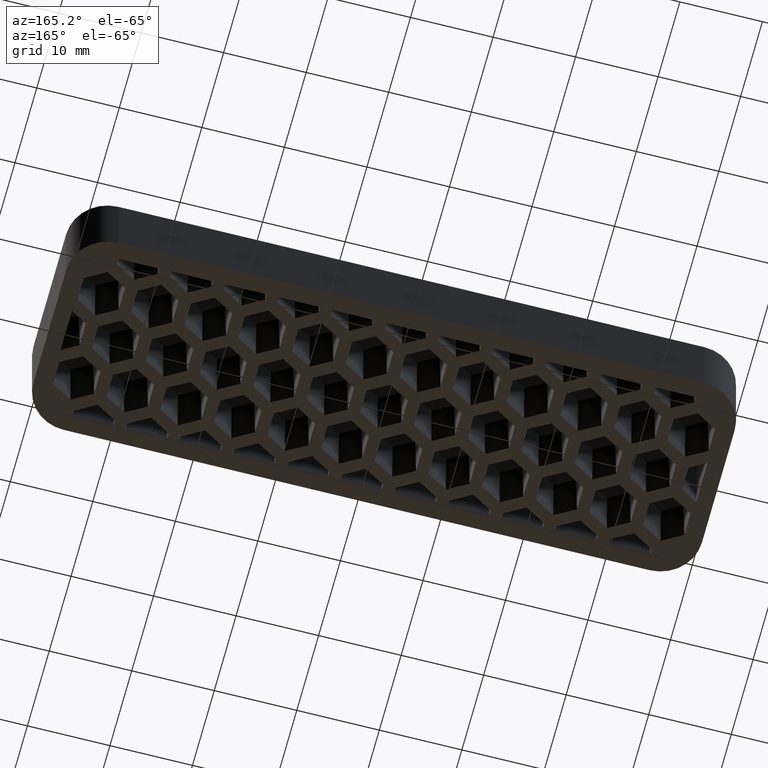
[diagram: clean part render]
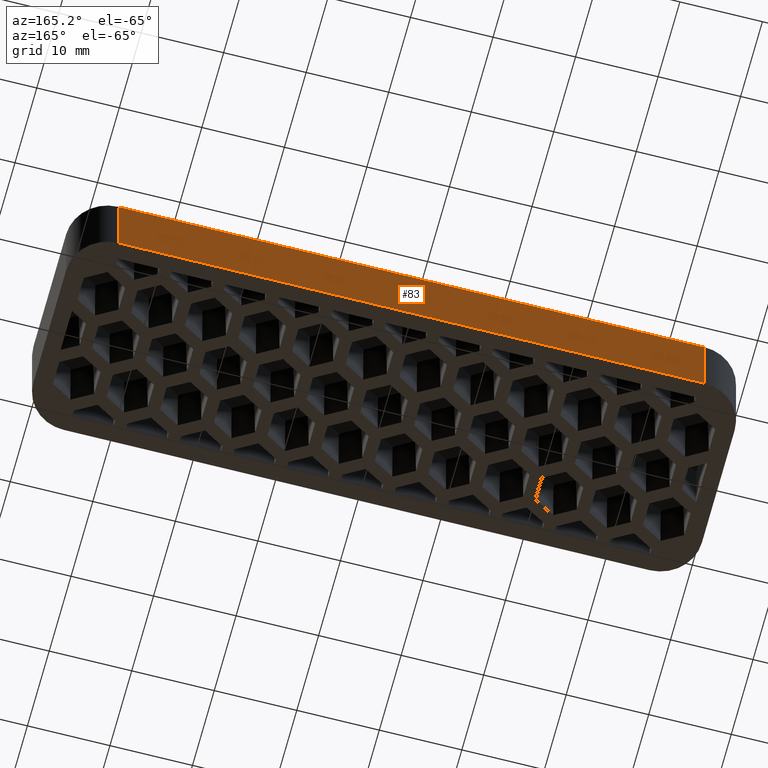
[diagram: same view with one face highlighted and labeled with its STEP entity id]
A machine part, auxiliary view. The second image highlights one B-rep face of the part: STEP entity #83.
In plain terms, the highlighted planar face has unit normal (0, -1, 0).
Its self-contained STEP definition (entity closure, byte-faithful):
#83 = ADVANCED_FACE( '', ( #592 ), #593, .F. );
#592 = FACE_OUTER_BOUND( '', #1528, .T. );
#593 = PLANE( '', #1529 );
#1528 = EDGE_LOOP( '', ( #2804, #2805, #2806, #2807 ) );
#1529 = AXIS2_PLACEMENT_3D( '', #2808, #2809, #2810 );
#2804 = ORIENTED_EDGE( '', *, *, #5888, .T. );
#2805 = ORIENTED_EDGE( '', *, *, #6259, .T. );
#2806 = ORIENTED_EDGE( '', *, *, #6254, .F. );
#2807 = ORIENTED_EDGE( '', *, *, #6260, .F. );
#2808 = CARTESIAN_POINT( '', ( -53.0000000000000, 12.5000000000000, -1.46431667789534E-014 ) );
#2809 = DIRECTION( '', ( 0.000000000000000, -1.00000000000000, 6.12303176911189E-017 ) );
#2810 = DIRECTION( '', ( -1.00000000000000, 0.000000000000000, 0.000000000000000 ) );
#5888 = EDGE_CURVE( '', #6997, #6994, #6998, .T. );
#6254 = EDGE_CURVE( '', #7723, #7724, #7725, .T. );
#6259 = EDGE_CURVE( '', #6994, #7724, #7732, .T. );
#6260 = EDGE_CURVE( '', #6997, #7723, #7733, .T. );
#6994 = VERTEX_POINT( '', #8833 );
#6997 = VERTEX_POINT( '', #8836 );
#6998 = LINE( '', #8837, #8838 );
#7723 = VERTEX_POINT( '', #9920 );
#7724 = VERTEX_POINT( '', #9921 );
#7725 = LINE( '', #9922, #9923 );
#7732 = LINE( '', #9931, #9932 );
#7733 = LINE( '', #9933, #9934 );
#8833 = CARTESIAN_POINT( '', ( 35.5000000000000, 12.5000000000000, 9.99999999999998 ) );
#8836 = CARTESIAN_POINT( '', ( -35.5000000000000, 12.5000000000000, 9.99999999999998 ) );
#8837 = CARTESIAN_POINT( '', ( -53.0000000000000, 12.5000000000000, 9.99999999999998 ) );
#8838 = VECTOR( '', #11722, 1000.00000000000 );
#9920 = CARTESIAN_POINT( '', ( -35.5000000000000, 12.5000000000000, -1.46431667789534E-014 ) );
#9921 = CARTESIAN_POINT( '', ( 35.5000000000000, 12.5000000000000, -1.46431667789534E-014 ) );
#9922 = CARTESIAN_POINT( '', ( -53.0000000000000, 12.5000000000000, -1.46431667789534E-014 ) );
#9923 = VECTOR( '', #12104, 1000.00000000000 );
#9931 = CARTESIAN_POINT( '', ( 35.5000000000000, 12.5000000000001, 88.7139788967795 ) );
#9932 = VECTOR( '', #12115, 1000.00000000000 );
#9933 = CARTESIAN_POINT( '', ( -35.5000000000000, 12.5000000000000, 102.092985120056 ) );
#9934 = VECTOR( '', #12116, 1000.00000000000 );
#11722 = DIRECTION( '', ( 1.00000000000000, 0.000000000000000, 0.000000000000000 ) );
#12104 = DIRECTION( '', ( 1.00000000000000, 0.000000000000000, 0.000000000000000 ) );
#12115 = DIRECTION( '', ( 1.60751816480227E-016, -1.81794180051289E-016, -1.00000000000000 ) );
#12116 = DIRECTION( '', ( 1.60751816480226E-016, -1.81794180051289E-016, -1.00000000000000 ) );